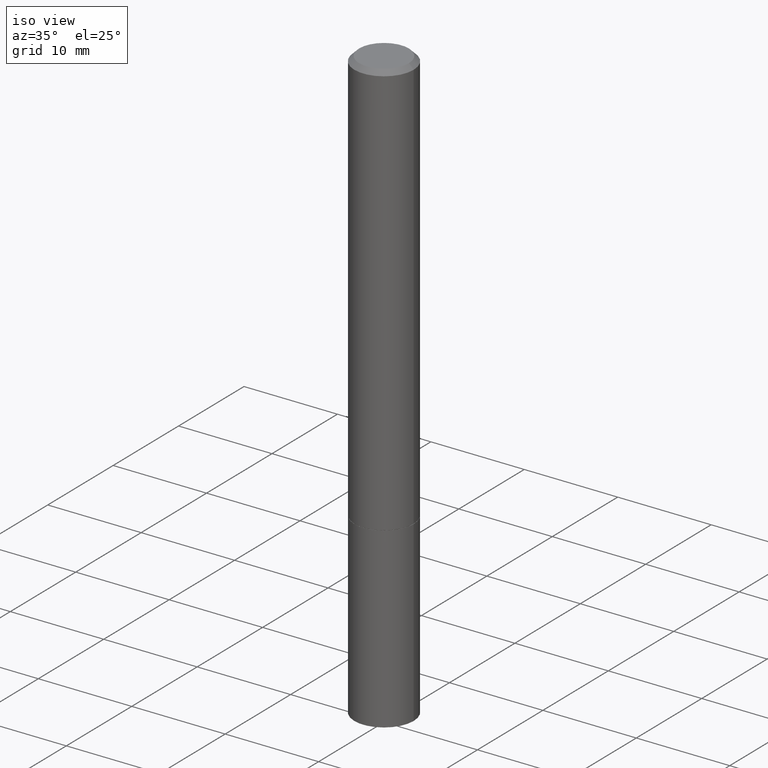
[diagram: clean part render]
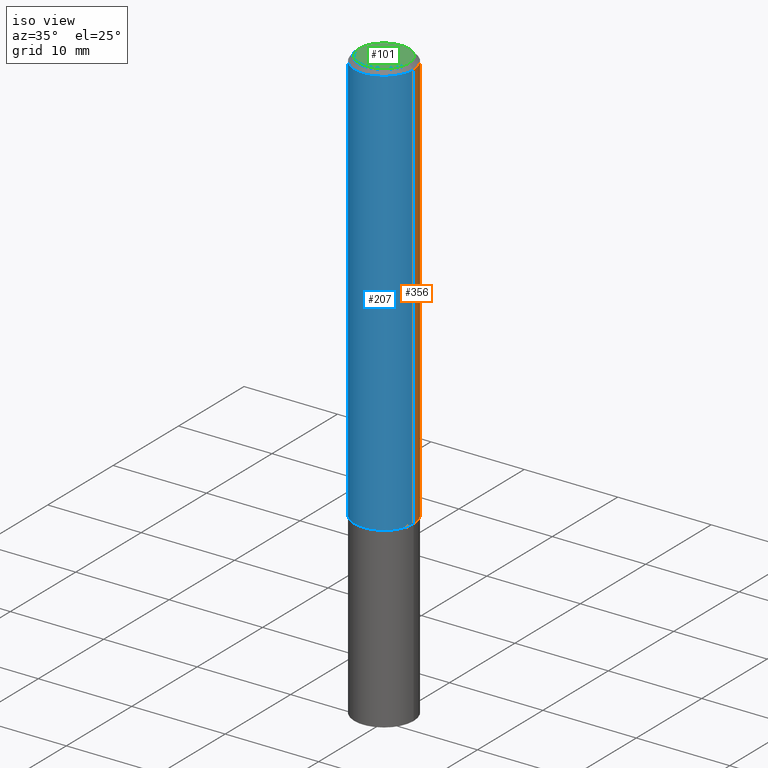
[diagram: same view with three faces highlighted in distinct colors, each labeled with its STEP entity id]
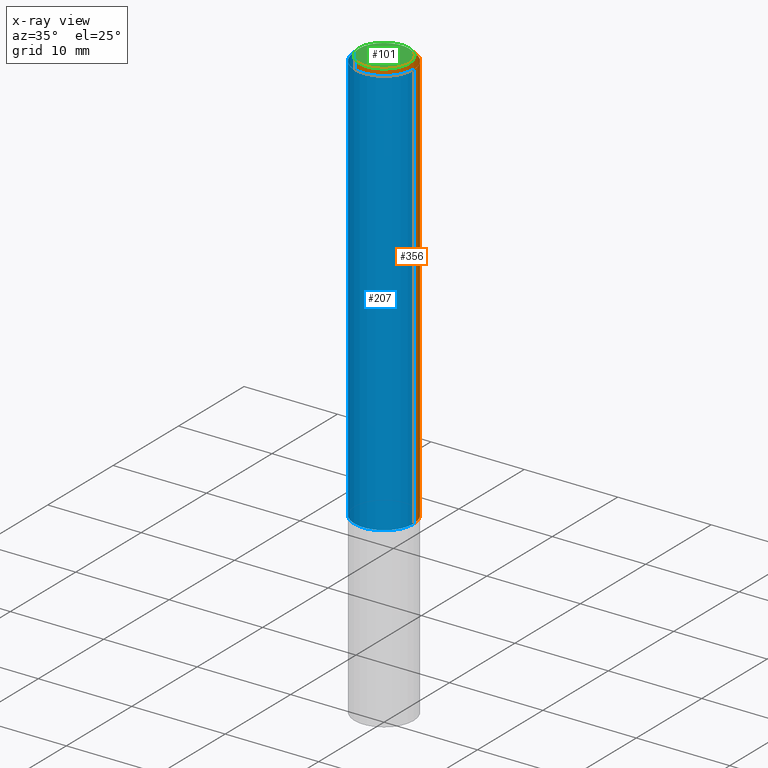
[diagram: x-ray of the same camera — body ghosted, the three highlighted faces saturated]
A machine part, iso view with three faces highlighted in distinct colors.
The next image is the same camera in x-ray (body ghosted, the three faces saturated) — at least one of them is partly hidden behind the body in this view.
Their STEP definitions:

[orange] entity #356 — the highlighted cylindrical surface (edge-blend (fillet) strip) has radius 3.175 mm, axis along (-0, 0, 1).
#4 = EDGE_CURVE ( 'NONE', #283, #175, #153, .T. ) ;
#15 = CARTESIAN_POINT ( 'NONE',  ( -0.1249999999999997780, 8.030407079339188573E-16, -0.02000000000000002123 ) ) ;
#19 = CARTESIAN_POINT ( 'NONE',  ( -0.1249999999999999029, 8.881784197001245421E-16, -6.148668862818627323E-30 ) ) ;
#27 = ORIENTED_EDGE ( 'NONE', *, *, #74, .T. ) ;
#40 = DIRECTION ( 'NONE',  ( -2.445468806185136597E-29, 3.491481338843145583E-15, 1.000000000000000000 ) ) ;
#43 = VERTEX_POINT ( 'NONE', #132 ) ;
#65 = VERTEX_POINT ( 'NONE', #15 ) ;
#73 = CYLINDRICAL_SURFACE ( 'NONE', #97, 0.1249999999999999029 ) ;
#74 = EDGE_CURVE ( 'NONE', #283, #43, #241, .T. ) ;
#76 = CARTESIAN_POINT ( 'NONE',  ( 0.000000000000000000, 0.000000000000000000, 0.000000000000000000 ) ) ;
#79 = AXIS2_PLACEMENT_3D ( 'NONE', #217, #118, #266 ) ;
#90 = CARTESIAN_POINT ( 'NONE',  ( 0.1249999999999997780, -9.273918764983027713E-16, -0.02000000000000002123 ) ) ;
#97 = AXIS2_PLACEMENT_3D ( 'NONE', #76, #355, #104 ) ;
#104 = DIRECTION ( 'NONE',  ( 1.000000000000000000, -6.982962677686266711E-15, 4.876176775795935793E-29 ) ) ;
#107 = CIRCLE ( 'NONE', #79, 0.1249999999999997780 ) ;
#118 = DIRECTION ( 'NONE',  ( -2.445468806185136597E-29, 3.491481338843145583E-15, 1.000000000000000000 ) ) ;
#126 = EDGE_CURVE ( 'NONE', #175, #65, #107, .T. ) ;
#132 = CARTESIAN_POINT ( 'NONE',  ( -0.1250000000000000278, -2.200036824506634488E-15, -1.749000000000000110 ) ) ;
#135 = CARTESIAN_POINT ( 'NONE',  ( 4.277124942017804562E-29, -6.106600861636661664E-15, -1.749000000000000110 ) ) ;
#140 = LINE ( 'NONE', #19, #338 ) ;
#153 = LINE ( 'NONE', #323, #365 ) ;
#175 = VERTEX_POINT ( 'NONE', #90 ) ;
#182 = DIRECTION ( 'NONE',  ( -2.445468806185136877E-29, 3.491481338843145188E-15, 1.000000000000000000 ) ) ;
#190 = CARTESIAN_POINT ( 'NONE',  ( 0.1250000000000000000, -6.979471196347445792E-15, -1.749000000000000110 ) ) ;
#197 = ORIENTED_EDGE ( 'NONE', *, *, #301, .T. ) ;
#205 = DIRECTION ( 'NONE',  ( 1.000000000000000000, -6.982962677686270655E-15, 0.000000000000000000 ) ) ;
#216 = FACE_OUTER_BOUND ( 'NONE', #288, .T. ) ;
#217 = CARTESIAN_POINT ( 'NONE',  ( 4.890937612370278413E-31, -6.982962677686297772E-17, -0.02000000000000002123 ) ) ;
#225 = ORIENTED_EDGE ( 'NONE', *, *, #126, .F. ) ;
#238 = DIRECTION ( 'NONE',  ( -2.445468806185136877E-29, 3.491481338843145188E-15, 1.000000000000000000 ) ) ;
#241 = CIRCLE ( 'NONE', #348, 0.1250000000000000000 ) ;
#266 = DIRECTION ( 'NONE',  ( 1.000000000000000000, -6.982962677686266711E-15, 0.000000000000000000 ) ) ;
#283 = VERTEX_POINT ( 'NONE', #190 ) ;
#288 = EDGE_LOOP ( 'NONE', ( #27, #197, #225, #305 ) ) ;
#301 = EDGE_CURVE ( 'NONE', #43, #65, #140, .T. ) ;
#305 = ORIENTED_EDGE ( 'NONE', *, *, #4, .F. ) ;
#323 = CARTESIAN_POINT ( 'NONE',  ( 0.1249999999999999029, -8.728703347107826486E-16, 6.095220969744914837E-30 ) ) ;
#338 = VECTOR ( 'NONE', #238, 39.37007874015748143 ) ;
#348 = AXIS2_PLACEMENT_3D ( 'NONE', #135, #40, #205 ) ;
#355 = DIRECTION ( 'NONE',  ( -2.445468806185136597E-29, 3.491481338843145583E-15, 1.000000000000000000 ) ) ;
#356 = ADVANCED_FACE ( 'NONE', ( #216 ), #73, .T. ) ;
#365 = VECTOR ( 'NONE', #182, 39.37007874015748143 ) ;

[blue] entity #207 — the highlighted cylindrical surface (edge-blend (fillet) strip) has radius 3.175 mm, axis along (-0, 0, 1).
#3 = CIRCLE ( 'NONE', #174, 0.1249999999999997780 ) ;
#4 = EDGE_CURVE ( 'NONE', #283, #175, #153, .T. ) ;
#14 = AXIS2_PLACEMENT_3D ( 'NONE', #271, #274, #106 ) ;
#15 = CARTESIAN_POINT ( 'NONE',  ( -0.1249999999999997780, 8.030407079339188573E-16, -0.02000000000000002123 ) ) ;
#17 = DIRECTION ( 'NONE',  ( 1.000000000000000000, -6.982962677686266711E-15, 0.000000000000000000 ) ) ;
#19 = CARTESIAN_POINT ( 'NONE',  ( -0.1249999999999999029, 8.881784197001245421E-16, -6.148668862818627323E-30 ) ) ;
#43 = VERTEX_POINT ( 'NONE', #132 ) ;
#55 = ORIENTED_EDGE ( 'NONE', *, *, #265, .T. ) ;
#59 = ORIENTED_EDGE ( 'NONE', *, *, #4, .T. ) ;
#65 = VERTEX_POINT ( 'NONE', #15 ) ;
#72 = DIRECTION ( 'NONE',  ( -2.445468806185136597E-29, 3.491481338843145583E-15, 1.000000000000000000 ) ) ;
#90 = CARTESIAN_POINT ( 'NONE',  ( 0.1249999999999997780, -9.273918764983027713E-16, -0.02000000000000002123 ) ) ;
#106 = DIRECTION ( 'NONE',  ( 1.000000000000000000, -6.982962677686270655E-15, 0.000000000000000000 ) ) ;
#132 = CARTESIAN_POINT ( 'NONE',  ( -0.1250000000000000278, -2.200036824506634488E-15, -1.749000000000000110 ) ) ;
#140 = LINE ( 'NONE', #19, #338 ) ;
#153 = LINE ( 'NONE', #323, #365 ) ;
#166 = ORIENTED_EDGE ( 'NONE', *, *, #301, .F. ) ;
#174 = AXIS2_PLACEMENT_3D ( 'NONE', #328, #72, #17 ) ;
#175 = VERTEX_POINT ( 'NONE', #90 ) ;
#182 = DIRECTION ( 'NONE',  ( -2.445468806185136877E-29, 3.491481338843145188E-15, 1.000000000000000000 ) ) ;
#190 = CARTESIAN_POINT ( 'NONE',  ( 0.1250000000000000000, -6.979471196347445792E-15, -1.749000000000000110 ) ) ;
#195 = EDGE_LOOP ( 'NONE', ( #166, #55, #59, #281 ) ) ;
#200 = FACE_OUTER_BOUND ( 'NONE', #195, .T. ) ;
#207 = ADVANCED_FACE ( 'NONE', ( #200 ), #324, .T. ) ;
#229 = DIRECTION ( 'NONE',  ( -2.445468806185136597E-29, 3.491481338843145583E-15, 1.000000000000000000 ) ) ;
#238 = DIRECTION ( 'NONE',  ( -2.445468806185136877E-29, 3.491481338843145188E-15, 1.000000000000000000 ) ) ;
#242 = CIRCLE ( 'NONE', #14, 0.1250000000000000000 ) ;
#265 = EDGE_CURVE ( 'NONE', #43, #283, #242, .T. ) ;
#271 = CARTESIAN_POINT ( 'NONE',  ( 4.277124942017804562E-29, -6.106600861636661664E-15, -1.749000000000000110 ) ) ;
#274 = DIRECTION ( 'NONE',  ( -2.445468806185136597E-29, 3.491481338843145583E-15, 1.000000000000000000 ) ) ;
#281 = ORIENTED_EDGE ( 'NONE', *, *, #292, .F. ) ;
#283 = VERTEX_POINT ( 'NONE', #190 ) ;
#292 = EDGE_CURVE ( 'NONE', #65, #175, #3, .T. ) ;
#301 = EDGE_CURVE ( 'NONE', #43, #65, #140, .T. ) ;
#315 = CARTESIAN_POINT ( 'NONE',  ( 0.000000000000000000, 0.000000000000000000, 0.000000000000000000 ) ) ;
#316 = DIRECTION ( 'NONE',  ( 1.000000000000000000, -6.982962677686266711E-15, 4.876176775795935793E-29 ) ) ;
#323 = CARTESIAN_POINT ( 'NONE',  ( 0.1249999999999999029, -8.728703347107826486E-16, 6.095220969744914837E-30 ) ) ;
#324 = CYLINDRICAL_SURFACE ( 'NONE', #327, 0.1249999999999999029 ) ;
#327 = AXIS2_PLACEMENT_3D ( 'NONE', #315, #229, #316 ) ;
#328 = CARTESIAN_POINT ( 'NONE',  ( 4.890937612370278413E-31, -6.982962677686297772E-17, -0.02000000000000002123 ) ) ;
#338 = VECTOR ( 'NONE', #238, 39.37007874015748143 ) ;
#365 = VECTOR ( 'NONE', #182, 39.37007874015748143 ) ;

[green] entity #101 — the highlighted planar face has unit normal (0, -0, -1).
#18 = CARTESIAN_POINT ( 'NONE',  ( 7.332110811570565452E-16, 0.1049999999999998018, -3.666055405785296038E-16 ) ) ;
#49 = DIRECTION ( 'NONE',  ( -1.000000000000000000, 6.982962677686265922E-15, -4.876176775795935793E-29 ) ) ;
#88 = CIRCLE ( 'NONE', #163, 0.1049999999999998018 ) ;
#94 = PLANE ( 'NONE',  #173 ) ;
#101 = ADVANCED_FACE ( 'NONE', ( #345 ), #94, .F. ) ;
#133 = EDGE_CURVE ( 'NONE', #343, #363, #88, .T. ) ;
#137 = DIRECTION ( 'NONE',  ( 2.438088387897960049E-29, -3.491481338843145188E-15, -1.000000000000000000 ) ) ;
#159 = DIRECTION ( 'NONE',  ( 1.000000000000000000, -6.982962677686265922E-15, 4.876176775795935793E-29 ) ) ;
#163 = AXIS2_PLACEMENT_3D ( 'NONE', #259, #319, #226 ) ;
#172 = EDGE_LOOP ( 'NONE', ( #280, #277 ) ) ;
#173 = AXIS2_PLACEMENT_3D ( 'NONE', #18, #137, #49 ) ;
#179 = CIRCLE ( 'NONE', #206, 0.1049999999999998018 ) ;
#206 = AXIS2_PLACEMENT_3D ( 'NONE', #353, #214, #159 ) ;
#214 = DIRECTION ( 'NONE',  ( -2.445468806185136597E-29, 3.491481338843145583E-15, 1.000000000000000000 ) ) ;
#226 = DIRECTION ( 'NONE',  ( 1.000000000000000000, -6.982962677686265922E-15, 4.876176775795935793E-29 ) ) ;
#259 = CARTESIAN_POINT ( 'NONE',  ( 0.000000000000000000, 0.000000000000000000, 0.000000000000000000 ) ) ;
#277 = ORIENTED_EDGE ( 'NONE', *, *, #341, .T. ) ;
#280 = ORIENTED_EDGE ( 'NONE', *, *, #133, .T. ) ;
#295 = CARTESIAN_POINT ( 'NONE',  ( 0.1049999999999998018, -8.238720831321562839E-16, 5.444276250344140956E-30 ) ) ;
#319 = DIRECTION ( 'NONE',  ( -2.445468806185136597E-29, 3.491481338843145583E-15, 1.000000000000000000 ) ) ;
#341 = EDGE_CURVE ( 'NONE', #363, #343, #179, .T. ) ;
#343 = VERTEX_POINT ( 'NONE', #358 ) ;
#345 = FACE_OUTER_BOUND ( 'NONE', #172, .T. ) ;
#353 = CARTESIAN_POINT ( 'NONE',  ( 0.000000000000000000, 0.000000000000000000, 0.000000000000000000 ) ) ;
#358 = CARTESIAN_POINT ( 'NONE',  ( -0.1049999999999998018, 7.681258945454876027E-16, -5.249639473182157468E-30 ) ) ;
#363 = VERTEX_POINT ( 'NONE', #295 ) ;